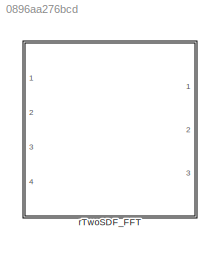
MODEL slx_0896aa276bcd
KIND model
CONFIG AbsTol = auto
CONFIG EnableMultiTasking = off
CONFIG FixedStep = auto
CONFIG MaxStep = auto
CONFIG MinStep = auto
CONFIG RelTol = 1e-3
CONFIG SampleTimeConstraint = Unconstrained
CONFIG Solver = VariableStepAuto
CONFIG SolverName = VariableStepAuto
CONFIG StartTime = 0.0
CONFIG StopTime = 10.0
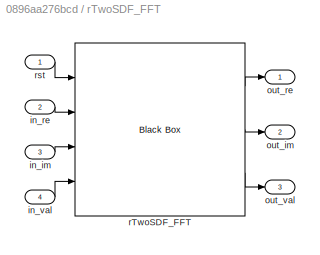
BLOCK [SubSystem] rTwoSDF_FFT
  Ports = [4, 3]
  RequestExecContextInheritance = off
BLOCK [Inport] rTwoSDF_FFT/in_im
  IconDisplay = Port number
  Port = 3
BLOCK [Inport] rTwoSDF_FFT/in_re
  IconDisplay = Port number
  Port = 2
BLOCK [Inport] rTwoSDF_FFT/in_val
  IconDisplay = Port number
  Port = 4
BLOCK [Outport] rTwoSDF_FFT/out_im
  IconDisplay = Port number
  Port = 2
BLOCK [Outport] rTwoSDF_FFT/out_re
  IconDisplay = Port number
BLOCK [Outport] rTwoSDF_FFT/out_val
  IconDisplay = Port number
  Port = 3
BLOCK [Reference] rTwoSDF_FFT/rTwoSDF_FFT  REF=xbsIndex_r4/Black Box
  Ports = [4, 3]
  SourceBlock = xbsIndex_r4/Black Box
  SourceType = Xilinx Black Box Block
BLOCK [Inport] rTwoSDF_FFT/rst
  IconDisplay = Port number
LINE rTwoSDF_FFT/in_im:1 -> rTwoSDF_FFT/rTwoSDF_FFT:3
LINE rTwoSDF_FFT/in_re:1 -> rTwoSDF_FFT/rTwoSDF_FFT:2
LINE rTwoSDF_FFT/in_val:1 -> rTwoSDF_FFT/rTwoSDF_FFT:4
LINE rTwoSDF_FFT/rTwoSDF_FFT:1 -> rTwoSDF_FFT/out_re:1
LINE rTwoSDF_FFT/rTwoSDF_FFT:2 -> rTwoSDF_FFT/out_im:1
LINE rTwoSDF_FFT/rTwoSDF_FFT:3 -> rTwoSDF_FFT/out_val:1
LINE rTwoSDF_FFT/rst:1 -> rTwoSDF_FFT/rTwoSDF_FFT:1
